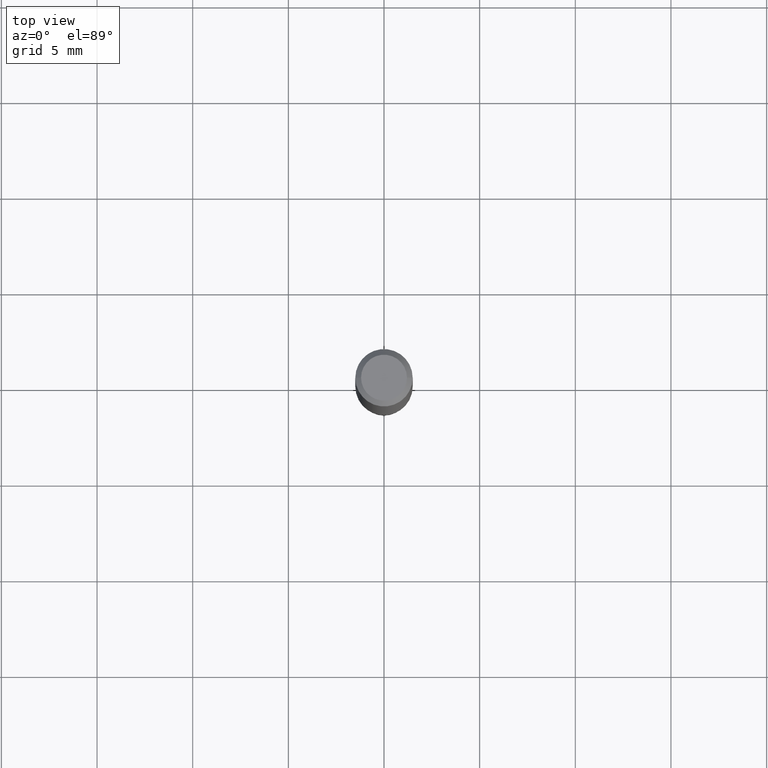
[diagram: clean part render]
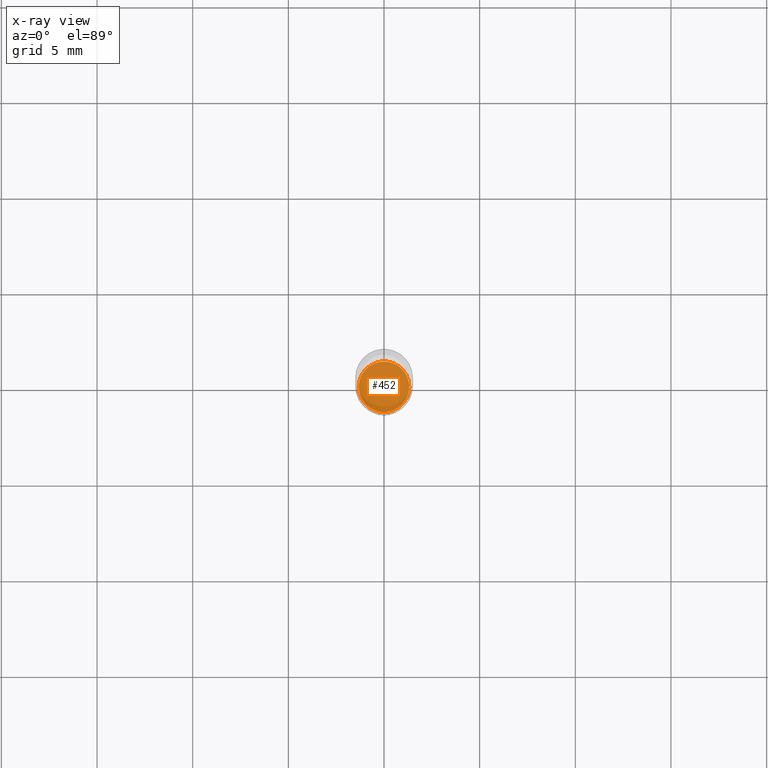
[diagram: x-ray — body ghosted, one internal face saturated and labeled with its STEP entity id]
A machine part, top view, then the same camera in x-ray: the body is ghosted and one INTERNAL B-rep face — a face not visible from any outside direction — is saturated and labeled: STEP entity #452.
In plain terms, the highlighted planar face has unit normal (-0, 0, 1).
Its self-contained STEP definition (entity closure, byte-faithful):
#8 = CARTESIAN_POINT ( 'NONE',  ( 0.05204999999999999211, -4.184889532737392438E-15, -1.094499999999999806 ) ) ;
#33 = CARTESIAN_POINT ( 'NONE',  ( -0.05204999999999999211, -3.448939604226579531E-15, -1.094499999999999806 ) ) ;
#106 = DIRECTION ( 'NONE',  ( -2.438088387897960049E-29, 3.491481338843145188E-15, 1.000000000000000000 ) ) ;
#108 = EDGE_LOOP ( 'NONE', ( #227, #402 ) ) ;
#186 = VERTEX_POINT ( 'NONE', #8 ) ;
#202 = DIRECTION ( 'NONE',  ( 1.000000000000000000, -6.982962677686265133E-15, 0.000000000000000000 ) ) ;
#208 = CARTESIAN_POINT ( 'NONE',  ( 2.676565608369631234E-29, -3.821426325363821984E-15, -1.094499999999999806 ) ) ;
#227 = ORIENTED_EDGE ( 'NONE', *, *, #232, .F. ) ;
#232 = EDGE_CURVE ( 'NONE', #186, #413, #241, .T. ) ;
#241 = CIRCLE ( 'NONE', #476, 0.05204999999999999211 ) ;
#288 = FACE_OUTER_BOUND ( 'NONE', #108, .T. ) ;
#292 = CIRCLE ( 'NONE', #365, 0.05204999999999999211 ) ;
#310 = CARTESIAN_POINT ( 'NONE',  ( 2.676565608369631234E-29, -3.821426325363821984E-15, -1.094499999999999806 ) ) ;
#318 = DIRECTION ( 'NONE',  ( -2.445468806185136597E-29, 3.491481338843145583E-15, 1.000000000000000000 ) ) ;
#346 = EDGE_CURVE ( 'NONE', #413, #186, #292, .T. ) ;
#365 = AXIS2_PLACEMENT_3D ( 'NONE', #310, #318, #202 ) ;
#368 = DIRECTION ( 'NONE',  ( 1.000000000000000000, -6.982962677686265922E-15, 4.876176775795935793E-29 ) ) ;
#394 = DIRECTION ( 'NONE',  ( -2.445468806185136597E-29, 3.491481338843145583E-15, 1.000000000000000000 ) ) ;
#402 = ORIENTED_EDGE ( 'NONE', *, *, #346, .F. ) ;
#413 = VERTEX_POINT ( 'NONE', #33 ) ;
#437 = DIRECTION ( 'NONE',  ( 1.000000000000000000, -6.982962677686265133E-15, 0.000000000000000000 ) ) ;
#440 = AXIS2_PLACEMENT_3D ( 'NONE', #447, #106, #368 ) ;
#442 = PLANE ( 'NONE',  #440 ) ;
#447 = CARTESIAN_POINT ( 'NONE',  ( 4.682243963774227079E-29, -9.491807643018275637E-16, -1.094499999999999806 ) ) ;
#452 = ADVANCED_FACE ( 'NONE', ( #288 ), #442, .F. ) ;
#476 = AXIS2_PLACEMENT_3D ( 'NONE', #208, #394, #437 ) ;